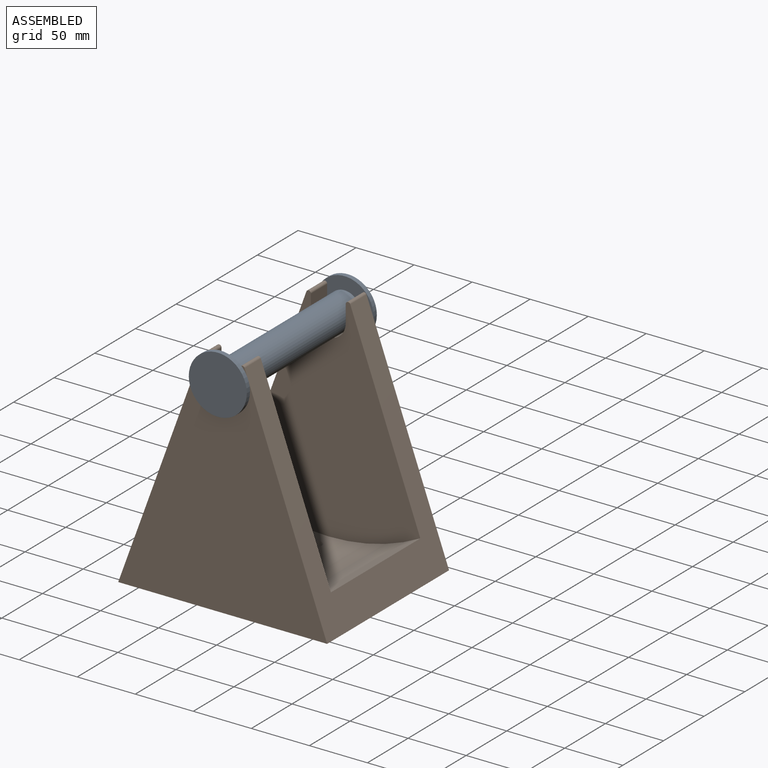
[diagram: assembled view]
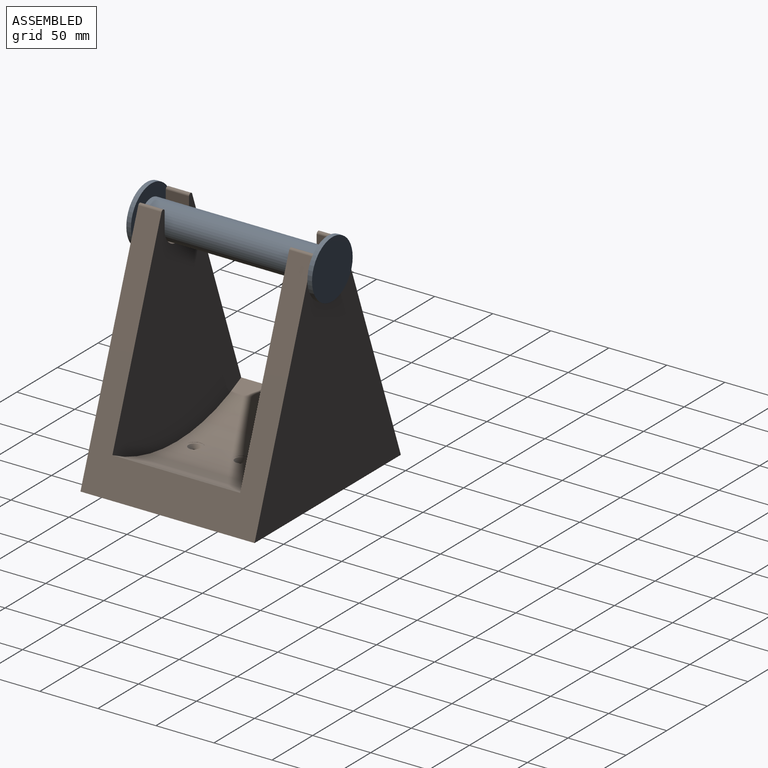
[diagram: assembled view, second angle]
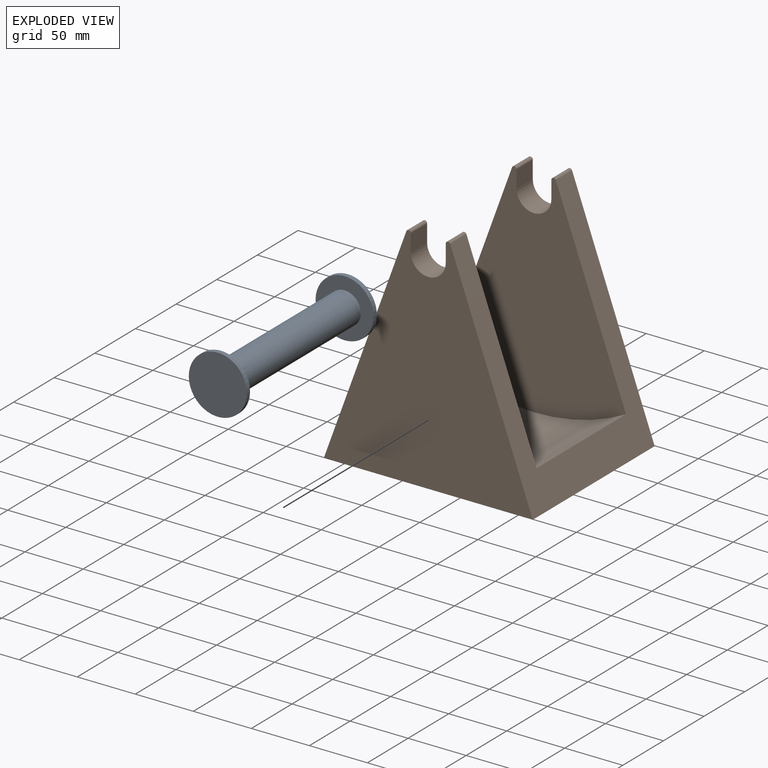
[diagram: exploded view]
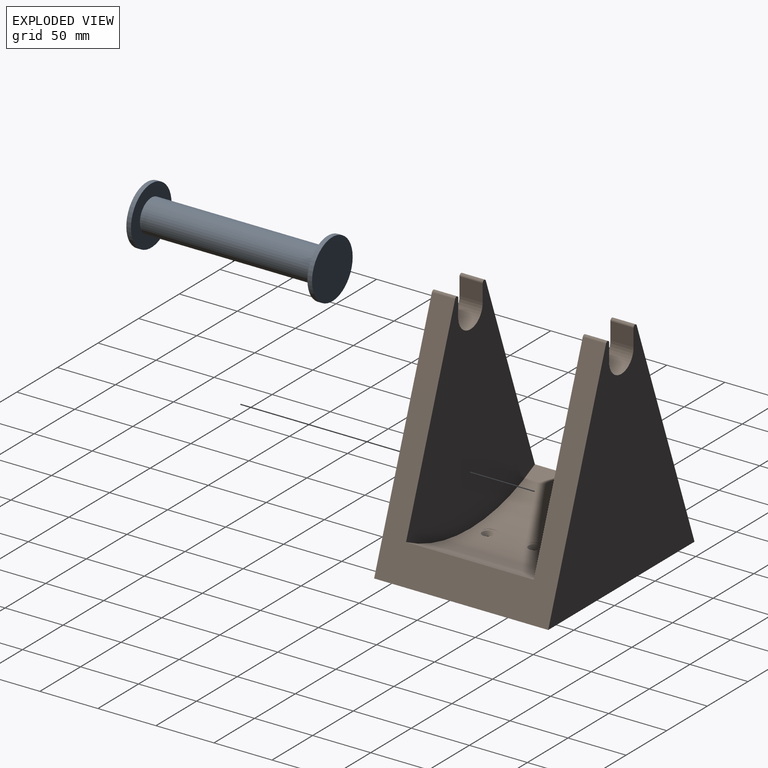
[diagram: exploded view, second angle]
ASSEMBLY  parts=2 mates=2
PART A: 7 faces, bbox 160x50x50 mm
  f0: plane 50x50mm, normal (-1,0,0), area 1963.5mm2, adj f6
  f1: plane 50x50mm, normal (1,0,0), area 1963.5mm2, adj f2
  f2: cylinder r=25mm len=50mm, axis (-1,0,0), area 628.3mm2, adj f1,f3
  f3: plane 50x50mm, normal (-1,0,0), area 1347.7mm2, adj f2,f4
  f4: cylinder r=14mm len=152mm, axis (-1,0,0), area 13370.6mm2, adj f3,f5
  f5: plane 50x50mm, normal (1,0,0), area 1347.7mm2, adj f4,f6
  f6: cylinder r=25mm len=50mm, axis (-1,0,0), area 628.3mm2, adj f0,f5
PART B: 33 faces, bbox 180x150x197 mm
  f0: cylinder r=170mm len=158.49mm, axis (0,1,0), area 17605.7mm2, adj f8,f10,f16,f17,f18,f20,f21,f23
  f1: plane 20x15mm, normal (1,0,0), area 300mm2, adj f2,f5,f15,f17
  f2: cylinder r=2mm len=20mm, axis (0,1,0), area 111.7mm2, adj f1,f8,f15,f17
  f3: cylinder r=2mm len=20mm, axis (0,1,0), area 111.7mm2, adj f4,f10,f15,f17
  f4: plane 20x15mm, normal (-1,0,0), area 300mm2, adj f3,f5,f15,f17
  f5: cylinder r=15mm len=30mm, axis (0,1,0), area 942.5mm2, adj f1,f4,f15,f17
  f6: plane 20x15mm, normal (1,0,0), area 300mm2, adj f7,f13,f14,f16
  f7: cylinder r=2mm len=20mm, axis (0,1,0), area 111.7mm2, adj f6,f8,f14,f16
  f8: plane 195.68x150mm, normal (-0.94,0,0.34), area 11792.5mm2, adj f0,f2,f7,f9,f14,f15,f16,f17
  f9: plane 180x150mm, normal (0,0,-1), area 26962.3mm2, adj f8,f10,f14,f15,f27,f28,f29
  f10: plane 195.68x150mm, normal (0.94,0,0.34), area 11792.5mm2, adj f0,f3,f9,f11,f14,f15,f16,f17
  f11: cylinder r=2mm len=20mm, axis (0,1,0), area 111.7mm2, adj f10,f12,f14,f16
  f12: plane 20x15mm, normal (-1,0,0), area 300mm2, adj f11,f13,f14,f16
  f13: cylinder r=15mm len=30mm, axis (0,1,0), area 942.5mm2, adj f6,f12,f14,f16
  f14: plane 197x180mm, normal (0,-1,0), area 20489.2mm2, adj f6,f7,f8,f9,f10,f11,f12,f13
  f15: plane 197x180mm, normal (0,1,0), area 20489.2mm2, adj f1,f2,f3,f4,f5,f8,f9,f10
  f16: plane 187x158.49mm, normal (0,1,0), area 17575.7mm2, adj f0,f6,f7,f8,f10,f11,f12,f13
  f17: plane 187x158.49mm, normal (0,-1,0), area 17575.7mm2, adj f0,f1,f2,f3,f4,f5,f8,f10
  f18: cylinder r=7.5mm len=15mm, axis (0,0,-1), area 2mm2, adj f0,f19
  f19: plane 15x15mm, normal (0,0,1), area 98.2mm2, adj f18,f20,f30
  f20: cylinder r=7.5mm len=15mm, axis (0,0,-1), area 1.9mm2, adj f0,f19
  f21: cylinder r=7.5mm len=15mm, axis (0,0,-1), area 2mm2, adj f0,f22
  f22: plane 15x15mm, normal (0,0,1), area 98.2mm2, adj f21,f23,f31
  f23: cylinder r=7.5mm len=15mm, axis (0,0,-1), area 1.9mm2, adj f0,f22
  f24: cylinder r=7.5mm len=15mm, axis (0,0,-1), area 2mm2, adj f0,f25
  f25: plane 15x15mm, normal (0,0,1), area 98.2mm2, adj f24,f26,f32
  f26: cylinder r=7.5mm len=15mm, axis (0,0,-1), area 1.9mm2, adj f0,f25
  f27: cylinder r=2mm len=7mm, axis (0,0,1), area 88mm2, adj f9,f32
  f28: cylinder r=2mm len=7mm, axis (0,0,1), area 88mm2, adj f9,f31
  f29: cylinder r=2mm len=7mm, axis (0,0,1), area 88mm2, adj f9,f30
  f30: cone r=2mm half-angle=45deg, axis (0,0,1), area 93.3mm2, adj f19,f29
  f31: cone r=2mm half-angle=45deg, axis (0,0,1), area 93.3mm2, adj f22,f28
  f32: cone r=2mm half-angle=45deg, axis (0,0,1), area 93.3mm2, adj f25,f27
PLACE A rot(axis=(0.58,-0.58,-0.58),120deg) t=(-121.34,-38,172.01)mm
PLACE B t=(-121.34,38,-7.99)mm
MATE cylindrical A.f2 <-> B.f5  axis (0,1,0) through (-121.34,38,172.01)mm
MATE planar A.f2 <-> B.f15  axis (0,-1,0) through (-121.34,38,172.01)mm
